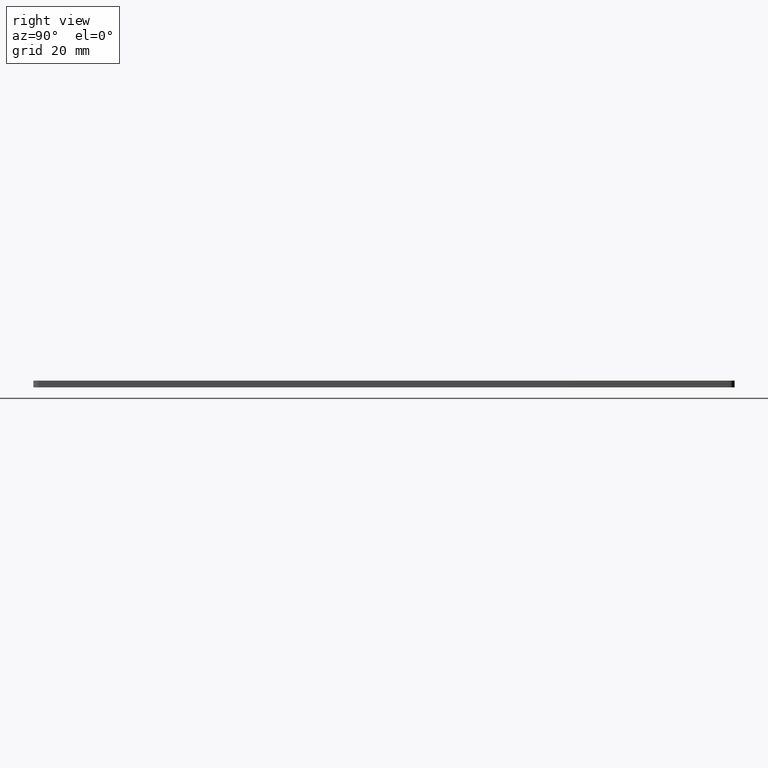
[diagram: clean part render]
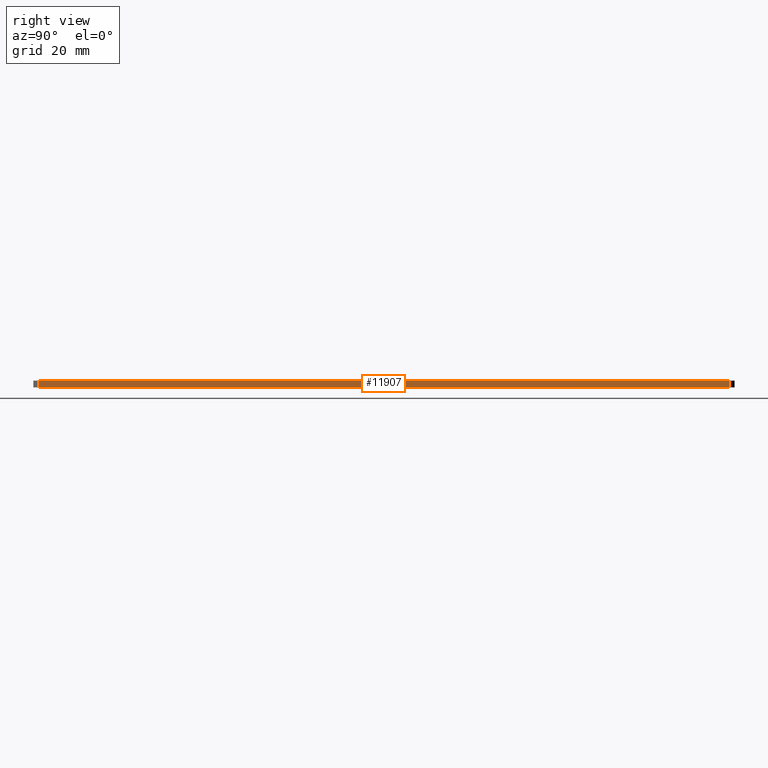
[diagram: same view with one face highlighted and labeled with its STEP entity id]
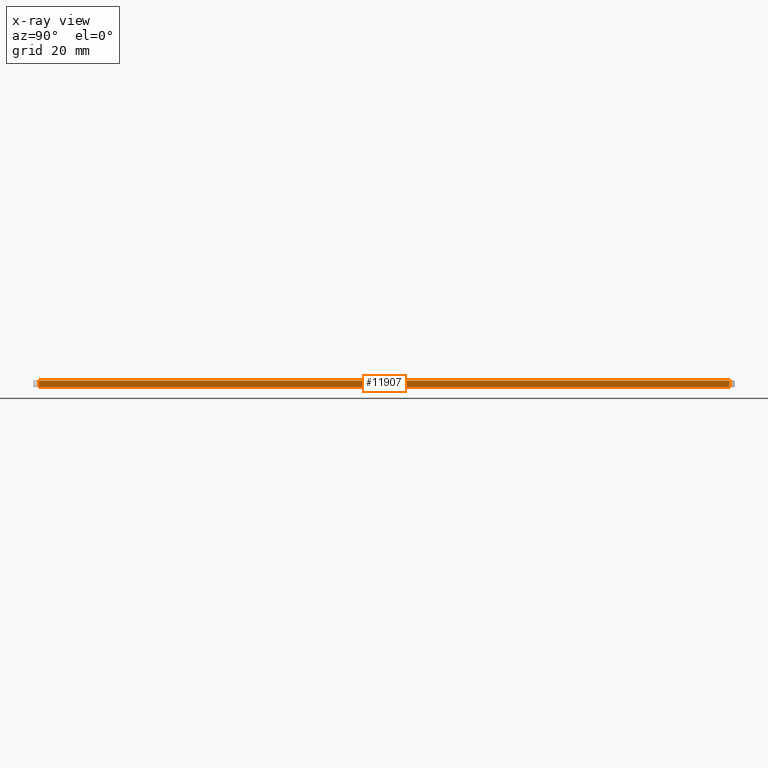
[diagram: x-ray of the same camera — body ghosted, the highlighted face saturated]
A machine part, right view. The second image highlights one B-rep face of the part: STEP entity #11907.
The next image is the same camera in x-ray: the body ghosted, the highlighted face saturated — about 0% of this face is hidden behind the body in this view.
In plain terms, the highlighted planar face has unit normal (1, 0, -0).
Its self-contained STEP definition (entity closure, byte-faithful):
#784 = EDGE_LOOP ( 'NONE', ( #4002, #2312, #10297, #6733 ) ) ;
#831 = CARTESIAN_POINT ( 'NONE',  ( 23.24999999999998900, 77.29999999999999700, 0.0000000000000000000 ) ) ;
#1673 = CARTESIAN_POINT ( 'NONE',  ( 23.24999999999998900, 77.29999999999999700, 1.500000000000000000 ) ) ;
#1788 = VECTOR ( 'NONE', #10348, 1000.000000000000000 ) ;
#1835 = VERTEX_POINT ( 'NONE', #3858 ) ;
#2312 = ORIENTED_EDGE ( 'NONE', *, *, #5844, .T. ) ;
#2949 = CARTESIAN_POINT ( 'NONE',  ( 23.24999999999998900, 78.50000000000000000, 0.0000000000000000000 ) ) ;
#3294 = DIRECTION ( 'NONE',  ( 1.325903293740234800E-016, -1.000000000000000000, 0.0000000000000000000 ) ) ;
#3858 = CARTESIAN_POINT ( 'NONE',  ( 23.25000000000001100, -77.29999999999999700, 0.0000000000000000000 ) ) ;
#3979 = DIRECTION ( 'NONE',  ( -1.325903293740234600E-016, 1.000000000000000000, 0.0000000000000000000 ) ) ;
#4002 = ORIENTED_EDGE ( 'NONE', *, *, #6267, .T. ) ;
#4031 = PLANE ( 'NONE',  #13230 ) ;
#4365 = CARTESIAN_POINT ( 'NONE',  ( 23.24999999999998900, 78.50000000000000000, 1.500000000000000000 ) ) ;
#5817 = DIRECTION ( 'NONE',  ( 0.0000000000000000000, 0.0000000000000000000, -1.000000000000000000 ) ) ;
#5844 = EDGE_CURVE ( 'NONE', #8468, #1835, #13539, .T. ) ;
#6036 = CARTESIAN_POINT ( 'NONE',  ( 23.24999999999998900, 78.50000000000000000, 1.500000000000000000 ) ) ;
#6133 = CARTESIAN_POINT ( 'NONE',  ( 23.25000000000001100, -77.29999999999999700, 1.500000000000000000 ) ) ;
#6267 = EDGE_CURVE ( 'NONE', #10807, #8468, #11975, .T. ) ;
#6456 = LINE ( 'NONE', #2949, #1788 ) ;
#6733 = ORIENTED_EDGE ( 'NONE', *, *, #10223, .T. ) ;
#6984 = CARTESIAN_POINT ( 'NONE',  ( 23.25000000000001100, -77.29999999999999700, 0.0000000000000000000 ) ) ;
#7152 = DIRECTION ( 'NONE',  ( 1.000000000000000000, 1.325903293740234600E-016, -0.0000000000000000000 ) ) ;
#7989 = VERTEX_POINT ( 'NONE', #831 ) ;
#8182 = VECTOR ( 'NONE', #3294, 1000.000000000000000 ) ;
#8468 = VERTEX_POINT ( 'NONE', #6133 ) ;
#9447 = EDGE_CURVE ( 'NONE', #7989, #1835, #6456, .T. ) ;
#10223 = EDGE_CURVE ( 'NONE', #7989, #10807, #10575, .T. ) ;
#10297 = ORIENTED_EDGE ( 'NONE', *, *, #9447, .F. ) ;
#10348 = DIRECTION ( 'NONE',  ( 1.325903293740234800E-016, -1.000000000000000000, 0.0000000000000000000 ) ) ;
#10385 = DIRECTION ( 'NONE',  ( 0.0000000000000000000, -0.0000000000000000000, 1.000000000000000000 ) ) ;
#10575 = LINE ( 'NONE', #13552, #11741 ) ;
#10807 = VERTEX_POINT ( 'NONE', #1673 ) ;
#11392 = VECTOR ( 'NONE', #5817, 1000.000000000000000 ) ;
#11725 = FACE_OUTER_BOUND ( 'NONE', #784, .T. ) ;
#11741 = VECTOR ( 'NONE', #10385, 1000.000000000000000 ) ;
#11907 = ADVANCED_FACE ( 'NONE', ( #11725 ), #4031, .T. ) ;
#11975 = LINE ( 'NONE', #4365, #8182 ) ;
#13230 = AXIS2_PLACEMENT_3D ( 'NONE', #6036, #7152, #3979 ) ;
#13539 = LINE ( 'NONE', #6984, #11392 ) ;
#13552 = CARTESIAN_POINT ( 'NONE',  ( 23.24999999999998900, 77.29999999999999700, 1.500000000000000000 ) ) ;